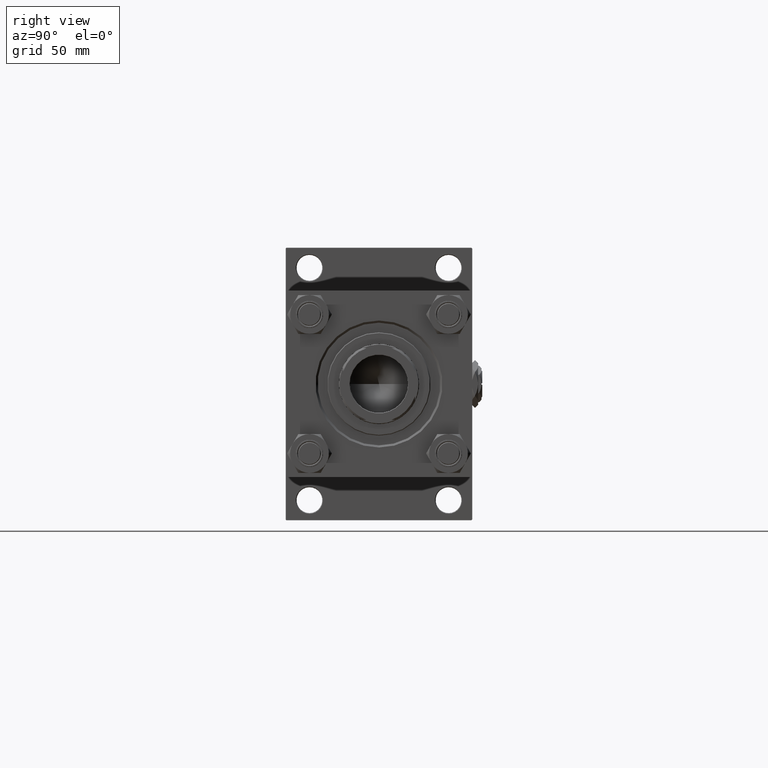
[diagram: clean part render]
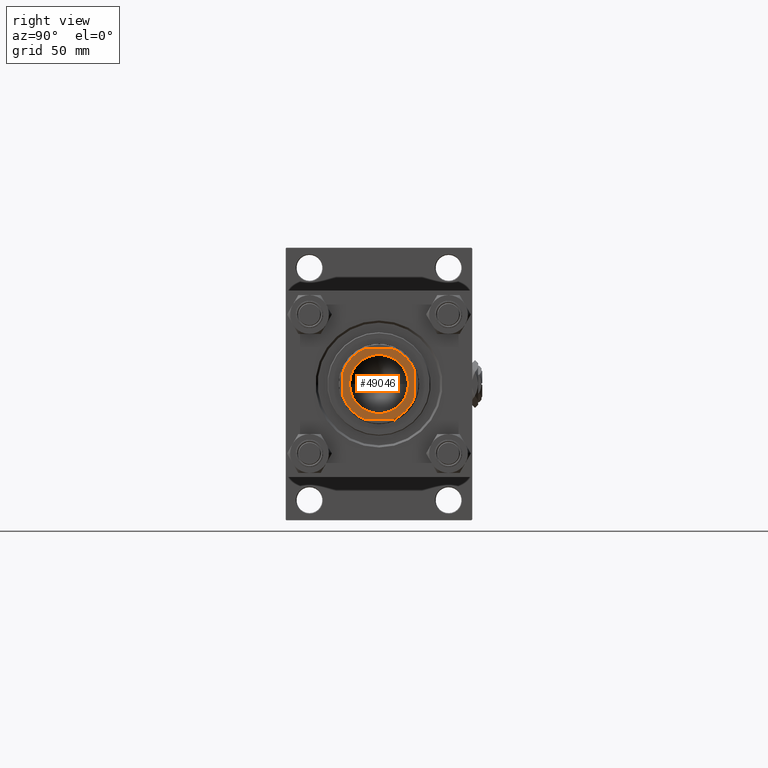
[diagram: same view with one face highlighted and labeled with its STEP entity id]
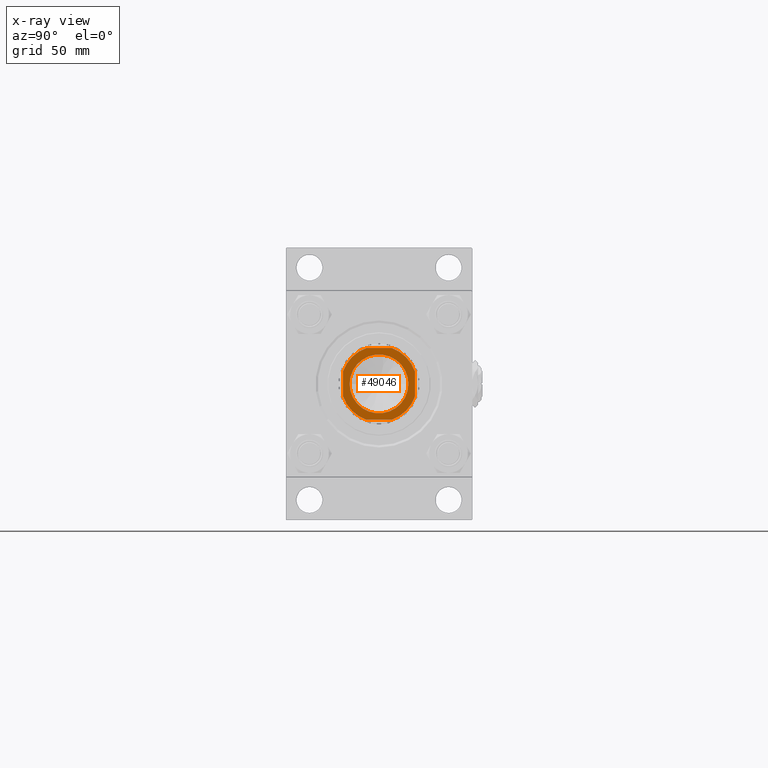
[diagram: x-ray of the same camera — body ghosted, the highlighted face saturated]
A machine part, right view. The second image highlights one B-rep face of the part: STEP entity #49046.
The next image is the same camera in x-ray: the body ghosted, the highlighted face saturated — about 0% of this face is hidden behind the body in this view.
In plain terms, the highlighted planar face has unit normal (1, 0, 0).
Its self-contained STEP definition (entity closure, byte-faithful):
#64 = LINE ( 'NONE', #3539, #16433 ) ;
#177 = AXIS2_PLACEMENT_3D ( 'NONE', #27560, #4139, #43798 ) ;
#181 = VERTEX_POINT ( 'NONE', #50714 ) ;
#1114 = CARTESIAN_POINT ( 'NONE',  ( -24.99999999999999289, -25.00000000000000000, 408.0000000000000568 ) ) ;
#2509 = LINE ( 'NONE', #30970, #50589 ) ;
#2818 = EDGE_CURVE ( 'NONE', #181, #47645, #11280, .T. ) ;
#3398 = ORIENTED_EDGE ( 'NONE', *, *, #45952, .T. ) ;
#3518 = EDGE_CURVE ( 'NONE', #45174, #181, #64, .T. ) ;
#3539 = CARTESIAN_POINT ( 'NONE',  ( -25.00000000000000000, 25.00000000000000000, 408.0000000000000568 ) ) ;
#4139 = DIRECTION ( 'NONE',  ( 0.000000000000000000, -0.000000000000000000, -1.000000000000000000 ) ) ;
#4656 = EDGE_CURVE ( 'NONE', #47645, #51218, #49781, .T. ) ;
#4754 = EDGE_CURVE ( 'NONE', #26955, #45174, #41093, .T. ) ;
#4994 = CARTESIAN_POINT ( 'NONE',  ( 25.00000000000000355, 8.789197915623406132, 408.0000000000000568 ) ) ;
#5293 = DIRECTION ( 'NONE',  ( 1.000000000000000000, 0.000000000000000000, 0.000000000000000000 ) ) ;
#5313 = DIRECTION ( 'NONE',  ( -1.387778780781445676E-16, 1.000000000000000000, -0.000000000000000000 ) ) ;
#5345 = DIRECTION ( 'NONE',  ( -0.000000000000000000, 0.000000000000000000, 1.000000000000000000 ) ) ;
#5477 = CARTESIAN_POINT ( 'NONE',  ( 8.789197915623409685, 25.00000000000000000, 408.0000000000000568 ) ) ;
#5799 = CARTESIAN_POINT ( 'NONE',  ( 8.789197915623409685, -25.00000000000000000, 408.0000000000000568 ) ) ;
#6505 = CARTESIAN_POINT ( 'NONE',  ( 0.000000000000000000, 0.000000000000000000, 408.0000000000000568 ) ) ;
#6631 = ORIENTED_EDGE ( 'NONE', *, *, #42030, .T. ) ;
#9507 = VERTEX_POINT ( 'NONE', #4994 ) ;
#10378 = ORIENTED_EDGE ( 'NONE', *, *, #3518, .T. ) ;
#11280 = CIRCLE ( 'NONE', #46143, 26.49999999999996803 ) ;
#11352 = VECTOR ( 'NONE', #16539, 1000.000000000000000 ) ;
#11996 = CIRCLE ( 'NONE', #26562, 26.49999999999998224 ) ;
#12221 = CARTESIAN_POINT ( 'NONE',  ( -24.99999999999999645, 8.789197915623137902, 408.0000000000000568 ) ) ;
#12822 = ORIENTED_EDGE ( 'NONE', *, *, #4754, .T. ) ;
#13405 = DIRECTION ( 'NONE',  ( 1.000000000000000000, 0.000000000000000000, 0.000000000000000000 ) ) ;
#13439 = ORIENTED_EDGE ( 'NONE', *, *, #18643, .T. ) ;
#14389 = ORIENTED_EDGE ( 'NONE', *, *, #29985, .T. ) ;
#16433 = VECTOR ( 'NONE', #35723, 1000.000000000000000 ) ;
#16539 = DIRECTION ( 'NONE',  ( 1.000000000000000000, 0.000000000000000000, 0.000000000000000000 ) ) ;
#16787 = CARTESIAN_POINT ( 'NONE',  ( 0.000000000000000000, 0.000000000000000000, 408.0000000000000568 ) ) ;
#17395 = PLANE ( 'NONE',  #35036 ) ;
#18388 = EDGE_CURVE ( 'NONE', #52595, #26412, #33306, .T. ) ;
#18643 = EDGE_CURVE ( 'NONE', #26412, #52595, #20533, .T. ) ;
#19365 = ORIENTED_EDGE ( 'NONE', *, *, #4656, .T. ) ;
#19613 = ORIENTED_EDGE ( 'NONE', *, *, #18388, .T. ) ;
#20533 = CIRCLE ( 'NONE', #177, 20.55000000000012506 ) ;
#20716 = ORIENTED_EDGE ( 'NONE', *, *, #52307, .T. ) ;
#20856 = FACE_BOUND ( 'NONE', #36243, .T. ) ;
#21121 = FACE_OUTER_BOUND ( 'NONE', #38797, .T. ) ;
#23698 = CARTESIAN_POINT ( 'NONE',  ( -20.55000000000012506, 2.516649172247825754E-15, 408.0000000000000568 ) ) ;
#24643 = DIRECTION ( 'NONE',  ( 1.000000000000000000, 0.000000000000000000, 0.000000000000000000 ) ) ;
#26412 = VERTEX_POINT ( 'NONE', #23698 ) ;
#26562 = AXIS2_PLACEMENT_3D ( 'NONE', #6505, #35491, #26985 ) ;
#26955 = VERTEX_POINT ( 'NONE', #33172 ) ;
#26985 = DIRECTION ( 'NONE',  ( 1.000000000000000000, 0.000000000000000000, 0.000000000000000000 ) ) ;
#27045 = CARTESIAN_POINT ( 'NONE',  ( 0.000000000000000000, 0.000000000000000000, 408.0000000000000568 ) ) ;
#27560 = CARTESIAN_POINT ( 'NONE',  ( 0.000000000000000000, 0.000000000000000000, 408.0000000000000568 ) ) ;
#28291 = CARTESIAN_POINT ( 'NONE',  ( -8.789197915623370605, -25.00000000000000000, 408.0000000000000568 ) ) ;
#28388 = CIRCLE ( 'NONE', #30041, 26.49999999999998224 ) ;
#28899 = DIRECTION ( 'NONE',  ( -0.000000000000000000, 0.000000000000000000, 1.000000000000000000 ) ) ;
#29985 = EDGE_CURVE ( 'NONE', #32580, #26955, #2509, .T. ) ;
#30041 = AXIS2_PLACEMENT_3D ( 'NONE', #36618, #28899, #24643 ) ;
#30357 = DIRECTION ( 'NONE',  ( 1.000000000000000000, 0.000000000000000000, 0.000000000000000000 ) ) ;
#30970 = CARTESIAN_POINT ( 'NONE',  ( -25.00000000000000000, 25.00000000000000000, 408.0000000000000568 ) ) ;
#32580 = VERTEX_POINT ( 'NONE', #5477 ) ;
#32622 = AXIS2_PLACEMENT_3D ( 'NONE', #45196, #40960, #5293 ) ;
#33172 = CARTESIAN_POINT ( 'NONE',  ( -8.789197915623130797, 25.00000000000000000, 408.0000000000000568 ) ) ;
#33306 = CIRCLE ( 'NONE', #47766, 20.55000000000012506 ) ;
#34571 = CARTESIAN_POINT ( 'NONE',  ( 25.00000000000000000, 25.00000000000000000, 408.0000000000000568 ) ) ;
#35036 = AXIS2_PLACEMENT_3D ( 'NONE', #37618, #37356, #13405 ) ;
#35289 = CARTESIAN_POINT ( 'NONE',  ( 25.00000000000000355, -8.789197915623402579, 408.0000000000000568 ) ) ;
#35491 = DIRECTION ( 'NONE',  ( -0.000000000000000000, 0.000000000000000000, 1.000000000000000000 ) ) ;
#35723 = DIRECTION ( 'NONE',  ( 1.387778780781445676E-16, -1.000000000000000000, 0.000000000000000000 ) ) ;
#36243 = EDGE_LOOP ( 'NONE', ( #19613, #13439 ) ) ;
#36618 = CARTESIAN_POINT ( 'NONE',  ( 0.000000000000000000, 0.000000000000000000, 408.0000000000000568 ) ) ;
#37356 = DIRECTION ( 'NONE',  ( -0.000000000000000000, 0.000000000000000000, 1.000000000000000000 ) ) ;
#37618 = CARTESIAN_POINT ( 'NONE',  ( 0.000000000000000000, 0.000000000000000000, 408.0000000000000568 ) ) ;
#38561 = LINE ( 'NONE', #34571, #43284 ) ;
#38744 = DIRECTION ( 'NONE',  ( 1.000000000000000000, 0.000000000000000000, 0.000000000000000000 ) ) ;
#38797 = EDGE_LOOP ( 'NONE', ( #6631, #20716, #14389, #12822, #10378, #44680, #19365, #3398 ) ) ;
#40960 = DIRECTION ( 'NONE',  ( -0.000000000000000000, 0.000000000000000000, 1.000000000000000000 ) ) ;
#41093 = CIRCLE ( 'NONE', #32622, 26.49999999999988987 ) ;
#42030 = EDGE_CURVE ( 'NONE', #47941, #9507, #38561, .T. ) ;
#43284 = VECTOR ( 'NONE', #5313, 1000.000000000000000 ) ;
#43798 = DIRECTION ( 'NONE',  ( 1.000000000000000000, 0.000000000000000000, 0.000000000000000000 ) ) ;
#44680 = ORIENTED_EDGE ( 'NONE', *, *, #2818, .T. ) ;
#45174 = VERTEX_POINT ( 'NONE', #12221 ) ;
#45196 = CARTESIAN_POINT ( 'NONE',  ( 0.000000000000000000, 0.000000000000000000, 408.0000000000000568 ) ) ;
#45570 = CARTESIAN_POINT ( 'NONE',  ( 20.55000000000012506, 0.000000000000000000, 408.0000000000000568 ) ) ;
#45952 = EDGE_CURVE ( 'NONE', #51218, #47941, #11996, .T. ) ;
#46143 = AXIS2_PLACEMENT_3D ( 'NONE', #16787, #5345, #30357 ) ;
#46410 = DIRECTION ( 'NONE',  ( -1.000000000000000000, -0.000000000000000000, -0.000000000000000000 ) ) ;
#46994 = DIRECTION ( 'NONE',  ( 0.000000000000000000, -0.000000000000000000, -1.000000000000000000 ) ) ;
#47645 = VERTEX_POINT ( 'NONE', #28291 ) ;
#47766 = AXIS2_PLACEMENT_3D ( 'NONE', #27045, #46994, #38744 ) ;
#47941 = VERTEX_POINT ( 'NONE', #35289 ) ;
#49046 = ADVANCED_FACE ( 'NONE', ( #20856, #21121 ), #17395, .T. ) ;
#49781 = LINE ( 'NONE', #1114, #11352 ) ;
#50589 = VECTOR ( 'NONE', #46410, 1000.000000000000000 ) ;
#50714 = CARTESIAN_POINT ( 'NONE',  ( -24.99999999999999645, -8.789197915623386592, 408.0000000000000568 ) ) ;
#51218 = VERTEX_POINT ( 'NONE', #5799 ) ;
#52307 = EDGE_CURVE ( 'NONE', #9507, #32580, #28388, .T. ) ;
#52595 = VERTEX_POINT ( 'NONE', #45570 ) ;